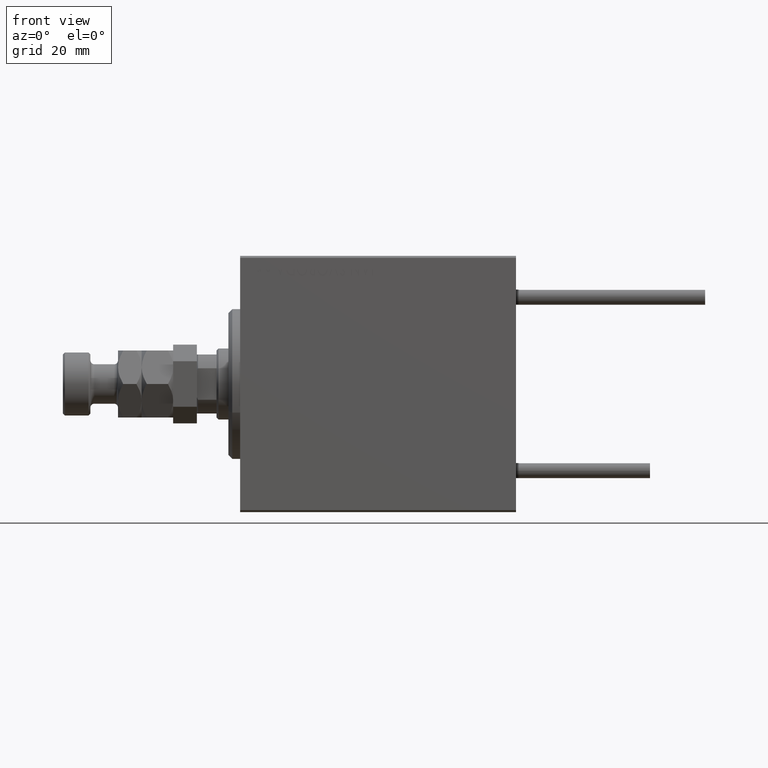
[diagram: clean part render]
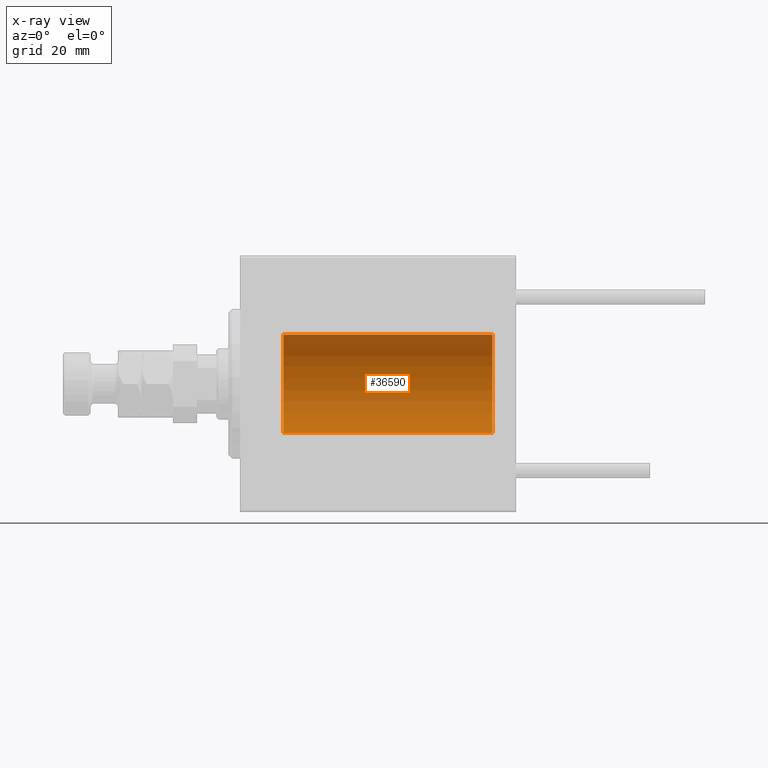
[diagram: x-ray — body ghosted, one internal face saturated and labeled with its STEP entity id]
A machine part, front view, then the same camera in x-ray: the body is ghosted and one INTERNAL B-rep face — a face not visible from any outside direction — is saturated and labeled: STEP entity #36590.
In plain terms, the highlighted cylindrical surface (partial cylindrical patch) has radius 12.5 mm, axis along (-1, -0, -0).
Its self-contained STEP definition (entity closure, byte-faithful):
#50 = VERTEX_POINT ( 'NONE', #8982 ) ;
#3461 = CIRCLE ( 'NONE', #51143, 12.50000000000000000 ) ;
#4111 = CARTESIAN_POINT ( 'NONE',  ( 64.00000000000000000, 1.530808498934191521E-15, -12.50000000000000000 ) ) ;
#5639 = EDGE_CURVE ( 'NONE', #26411, #16112, #3461, .T. ) ;
#8797 = CIRCLE ( 'NONE', #38122, 12.50000000000000000 ) ;
#8982 = CARTESIAN_POINT ( 'NONE',  ( 64.00000000000000000, 0.000000000000000000, 12.50000000000000000 ) ) ;
#9330 = DIRECTION ( 'NONE',  ( -1.000000000000000000, 0.000000000000000000, 0.000000000000000000 ) ) ;
#9757 = EDGE_LOOP ( 'NONE', ( #44439, #40618, #44748, #28880 ) ) ;
#9758 = CYLINDRICAL_SURFACE ( 'NONE', #22324, 12.50000000000000000 ) ;
#13587 = EDGE_CURVE ( 'NONE', #50, #26411, #37357, .T. ) ;
#16112 = VERTEX_POINT ( 'NONE', #37367 ) ;
#16979 = DIRECTION ( 'NONE',  ( -1.000000000000000000, -0.000000000000000000, -0.000000000000000000 ) ) ;
#18181 = EDGE_CURVE ( 'NONE', #50, #22667, #8797, .T. ) ;
#22174 = VECTOR ( 'NONE', #49907, 1000.000000000000000 ) ;
#22324 = AXIS2_PLACEMENT_3D ( 'NONE', #23095, #46435, #38575 ) ;
#22439 = CARTESIAN_POINT ( 'NONE',  ( 10.99999999999999645, 0.000000000000000000, 0.000000000000000000 ) ) ;
#22667 = VERTEX_POINT ( 'NONE', #4111 ) ;
#22673 = CARTESIAN_POINT ( 'NONE',  ( 10.99999999999999645, 0.000000000000000000, 12.50000000000000000 ) ) ;
#23095 = CARTESIAN_POINT ( 'NONE',  ( 64.00000000000000000, 0.000000000000000000, 0.000000000000000000 ) ) ;
#24494 = DIRECTION ( 'NONE',  ( -1.000000000000000000, 0.000000000000000000, 0.000000000000000000 ) ) ;
#25327 = DIRECTION ( 'NONE',  ( 0.000000000000000000, 0.000000000000000000, 1.000000000000000000 ) ) ;
#26411 = VERTEX_POINT ( 'NONE', #22673 ) ;
#28200 = VECTOR ( 'NONE', #16979, 1000.000000000000000 ) ;
#28790 = CARTESIAN_POINT ( 'NONE',  ( 64.00000000000000000, 1.530808498934191521E-15, -12.50000000000000000 ) ) ;
#28880 = ORIENTED_EDGE ( 'NONE', *, *, #5639, .T. ) ;
#32981 = LINE ( 'NONE', #28790, #28200 ) ;
#33963 = CARTESIAN_POINT ( 'NONE',  ( 64.00000000000000000, 0.000000000000000000, 12.50000000000000000 ) ) ;
#35519 = CARTESIAN_POINT ( 'NONE',  ( 64.00000000000000000, 0.000000000000000000, 0.000000000000000000 ) ) ;
#36590 = ADVANCED_FACE ( 'NONE', ( #37549 ), #9758, .F. ) ;
#37124 = EDGE_CURVE ( 'NONE', #22667, #16112, #32981, .T. ) ;
#37357 = LINE ( 'NONE', #33963, #22174 ) ;
#37367 = CARTESIAN_POINT ( 'NONE',  ( 10.99999999999999645, 1.530808498934191521E-15, -12.50000000000000000 ) ) ;
#37549 = FACE_OUTER_BOUND ( 'NONE', #9757, .T. ) ;
#38122 = AXIS2_PLACEMENT_3D ( 'NONE', #35519, #24494, #51483 ) ;
#38575 = DIRECTION ( 'NONE',  ( 0.000000000000000000, 0.000000000000000000, 1.000000000000000000 ) ) ;
#40618 = ORIENTED_EDGE ( 'NONE', *, *, #18181, .F. ) ;
#44439 = ORIENTED_EDGE ( 'NONE', *, *, #37124, .F. ) ;
#44748 = ORIENTED_EDGE ( 'NONE', *, *, #13587, .T. ) ;
#46435 = DIRECTION ( 'NONE',  ( -1.000000000000000000, -0.000000000000000000, -0.000000000000000000 ) ) ;
#49907 = DIRECTION ( 'NONE',  ( -1.000000000000000000, -0.000000000000000000, -0.000000000000000000 ) ) ;
#51143 = AXIS2_PLACEMENT_3D ( 'NONE', #22439, #9330, #25327 ) ;
#51483 = DIRECTION ( 'NONE',  ( 0.000000000000000000, 0.000000000000000000, 1.000000000000000000 ) ) ;